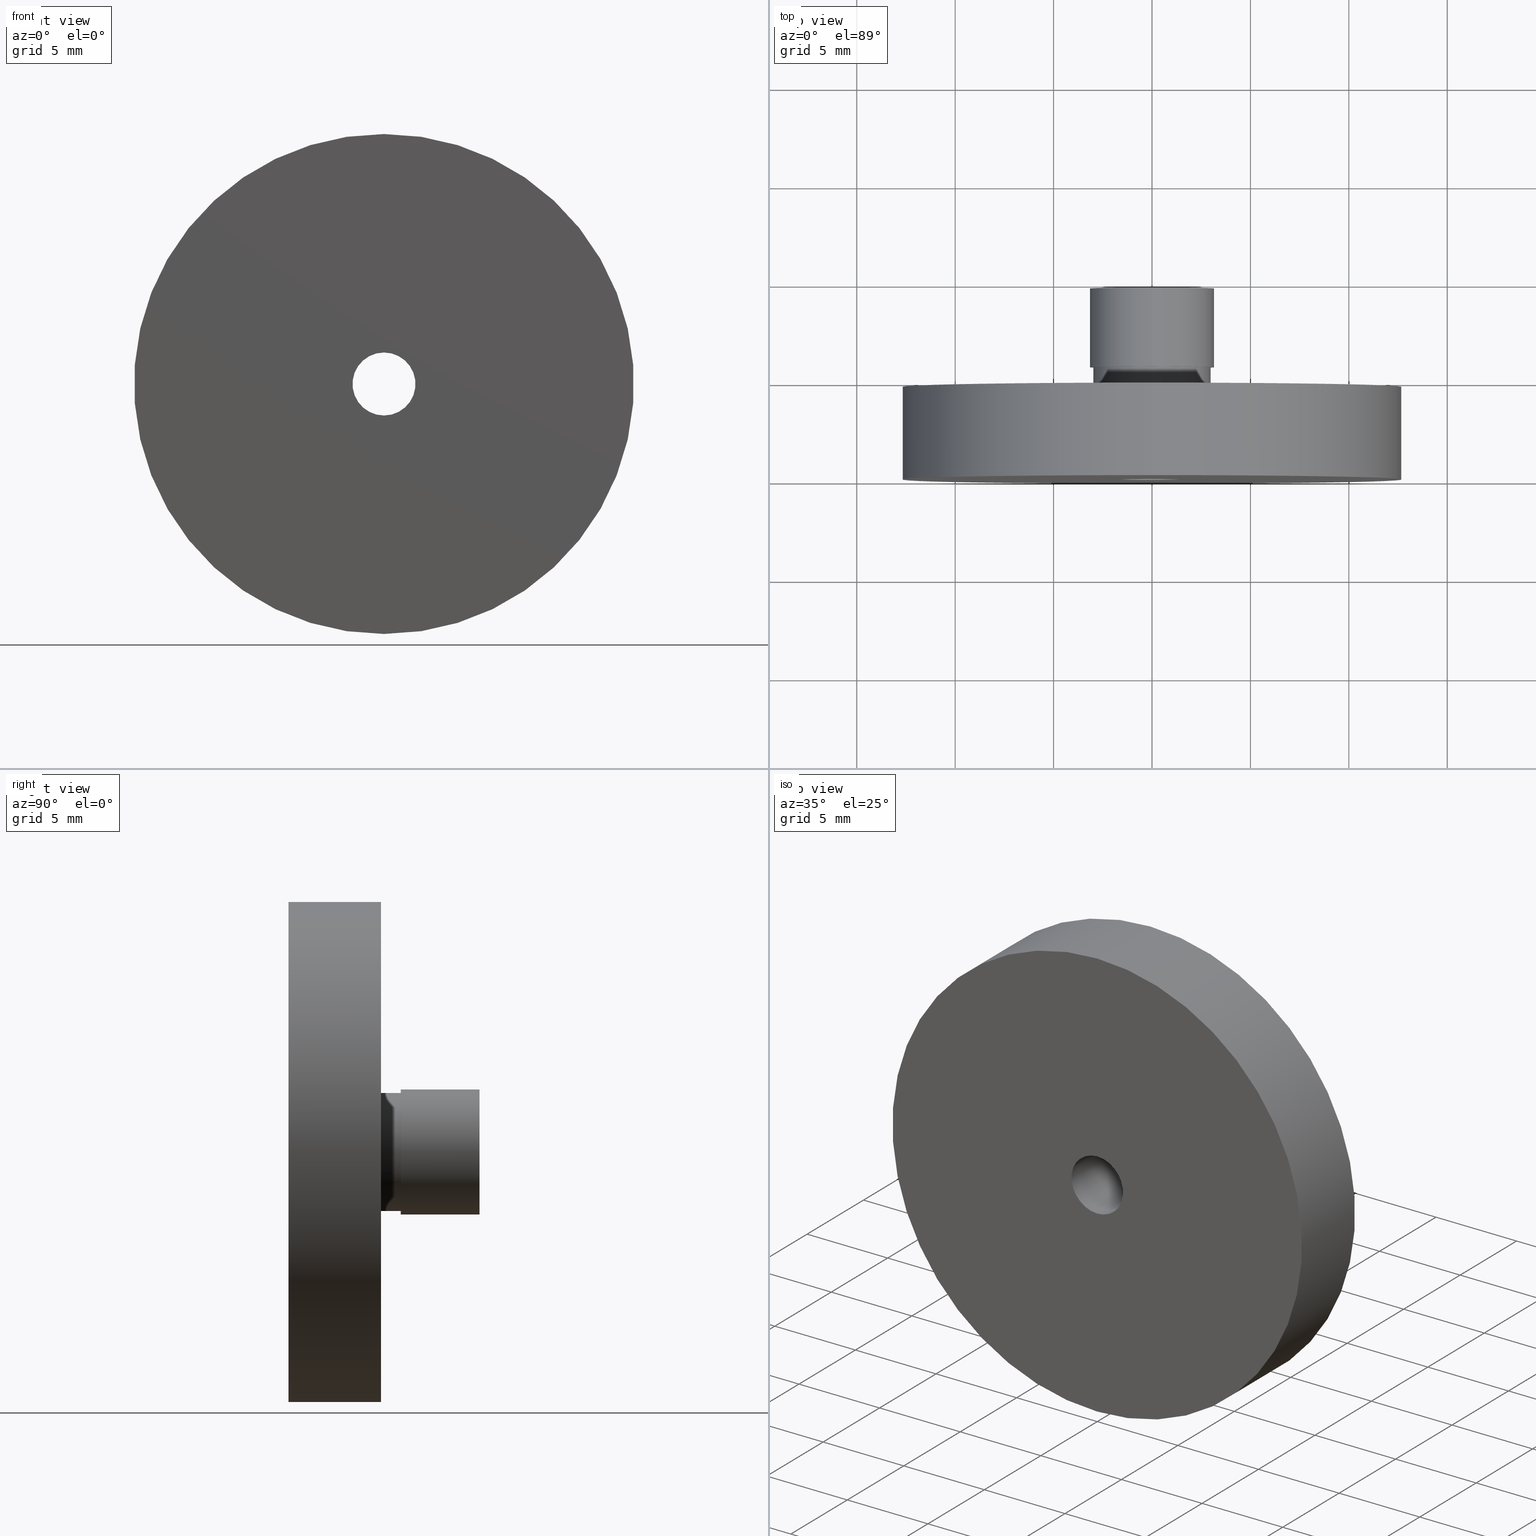
[diagram: canonical four-view strip — front | top / right | iso, engineering-drawing reading convention]
A machine part, canonical four-view strip (front | top / right | iso — engineering-drawing reading convention). The complete STEP part file that produces these views, byte-faithful:
ISO-10303-21;
HEADER;
FILE_DESCRIPTION (( 'STEP AP203' ),
    '1' );
FILE_NAME ('04ADA-SMA.STEP',
    '2016-03-02T05:48:13',
    ( '' ),
    ( '' ),
    'SwSTEP 2.0',
    'SolidWorks 2016',
    '' );
FILE_SCHEMA (( 'CONFIG_CONTROL_DESIGN' ));
ENDSEC;

DATA;
#1 = CARTESIAN_POINT ( 'NONE',  ( 3.000000000000004900, 5.699999999999999300, 0.0000000000000000000 ) ) ;
#2 = VERTEX_POINT ( 'NONE', #29 ) ;
#3 = VERTEX_POINT ( 'NONE', #376 ) ;
#4 = DIRECTION ( 'NONE',  ( -0.0000000000000000000, 1.000000000000000000, -0.0000000000000000000 ) ) ;
#5 = CARTESIAN_POINT ( 'NONE',  ( 0.0000000000000000000, 4.700000000000002800, 0.0000000000000000000 ) ) ;
#6 = PLANE ( 'NONE',  #341 ) ;
#7 = CIRCLE ( 'NONE', #198, 3.000000000000004900 ) ;
#8 = MECHANICAL_CONTEXT ( 'NONE', #140, 'mechanical' ) ;
#9 = VERTEX_POINT ( 'NONE', #59 ) ;
#10 = CARTESIAN_POINT ( 'NONE',  ( 0.0000000000000000000, 5.699999999999996600, 0.0000000000000000000 ) ) ;
#11 = DIRECTION ( 'NONE',  ( 0.0000000000000000000, -1.000000000000000000, 0.0000000000000000000 ) ) ;
#12 = DATE_AND_TIME ( #313, #386 ) ;
#13 = ORIENTED_EDGE ( 'NONE', *, *, #191, .F. ) ;
#14 = ORIENTED_EDGE ( 'NONE', *, *, #263, .F. ) ;
#15 = SECURITY_CLASSIFICATION ( '', '', #358 ) ;
#16 = DIRECTION ( 'NONE',  ( 0.0000000000000000000, 0.0000000000000000000, 1.000000000000000000 ) ) ;
#17 = CIRCLE ( 'NONE', #132, 12.70000000000000500 ) ;
#18 = DIRECTION ( 'NONE',  ( 0.0000000000000000000, -1.000000000000000000, 0.0000000000000000000 ) ) ;
#19 = DATE_AND_TIME ( #118, #399 ) ;
#20 = ORIENTED_EDGE ( 'NONE', *, *, #60, .F. ) ;
#21 = ORIENTED_EDGE ( 'NONE', *, *, #310, .F. ) ;
#22 = AXIS2_PLACEMENT_3D ( 'NONE', #42, #276, #272 ) ;
#23 = ADVANCED_BREP_SHAPE_REPRESENTATION ( '04ADA-SMA', ( #324, #300 ), #195 ) ;
#24 = ADVANCED_FACE ( 'NONE', ( #124, #162 ), #347, .F. ) ;
#25 = CIRCLE ( 'NONE', #365, 1.600000000000000100 ) ;
#26 = ORIENTED_EDGE ( 'NONE', *, *, #281, .F. ) ;
#27 = PERSON_AND_ORGANIZATION ( #117, #213 ) ;
#28 = VERTEX_POINT ( 'NONE', #58 ) ;
#29 = CARTESIAN_POINT ( 'NONE',  ( 0.0000000000000000000, 0.0000000000000000000, -1.600000000000000100 ) ) ;
#30 = EDGE_LOOP ( 'NONE', ( #164, #26 ) ) ;
#31 = AXIS2_PLACEMENT_3D ( 'NONE', #364, #177, #395 ) ;
#32 = CARTESIAN_POINT ( 'NONE',  ( 0.0000000000000000000, 41.06170623995065900, 0.0000000000000000000 ) ) ;
#33 = CIRCLE ( 'NONE', #247, 3.000000000000004400 ) ;
#34 = CC_DESIGN_SECURITY_CLASSIFICATION ( #15, ( #230 ) ) ;
#35 = DIRECTION ( 'NONE',  ( -0.0000000000000000000, 1.000000000000000000, -0.0000000000000000000 ) ) ;
#36 = ORIENTED_EDGE ( 'NONE', *, *, #234, .F. ) ;
#37 = PLANE ( 'NONE',  #379 ) ;
#38 = DIRECTION ( 'NONE',  ( 0.0000000000000000000, -1.000000000000000000, 0.0000000000000000000 ) ) ;
#39 = DATE_TIME_ROLE ( 'classification_date' ) ;
#40 = CARTESIAN_POINT ( 'NONE',  ( 0.0000000000000000000, 41.06170623995065900, 0.0000000000000000000 ) ) ;
#41 = CYLINDRICAL_SURFACE ( 'NONE', #408, 1.600000000000000100 ) ;
#42 = CARTESIAN_POINT ( 'NONE',  ( 0.0000000000000000000, 4.699999999999995700, 0.0000000000000000000 ) ) ;
#43 = CIRCLE ( 'NONE', #53, 1.600000000000000100 ) ;
#44 = DIRECTION ( 'NONE',  ( -0.0000000000000000000, -1.000000000000000000, -0.0000000000000000000 ) ) ;
#45 = FACE_OUTER_BOUND ( 'NONE', #145, .T. ) ;
#46 = VERTEX_POINT ( 'NONE', #322 ) ;
#47 = DIRECTION ( 'NONE',  ( 0.0000000000000000000, 0.0000000000000000000, 1.000000000000000000 ) ) ;
#48 = DIRECTION ( 'NONE',  ( 0.0000000000000000000, 0.0000000000000000000, 1.000000000000000000 ) ) ;
#49 = ORIENTED_EDGE ( 'NONE', *, *, #153, .F. ) ;
#50 = AXIS2_PLACEMENT_3D ( 'NONE', #167, #4, #269 ) ;
#51 = APPROVAL_PERSON_ORGANIZATION ( #27, #212, #232 ) ;
#52 = ADVANCED_FACE ( 'NONE', ( #129 ), #41, .F. ) ;
#53 = AXIS2_PLACEMENT_3D ( 'NONE', #311, #172, #239 ) ;
#54 = LINE ( 'NONE', #134, #88 ) ;
#55 = ORIENTED_EDGE ( 'NONE', *, *, #256, .F. ) ;
#56 = CARTESIAN_POINT ( 'NONE',  ( 0.0000000000000000000, 4.699999999999995700, 0.0000000000000000000 ) ) ;
#57 = LINE ( 'NONE', #353, #209 ) ;
#58 = CARTESIAN_POINT ( 'NONE',  ( 1.959434878635765200E-016, 0.0000000000000000000, 1.600000000000000100 ) ) ;
#59 = CARTESIAN_POINT ( 'NONE',  ( 1.959434878635765200E-016, 9.700000000000001100, 1.600000000000000100 ) ) ;
#60 = EDGE_CURVE ( 'NONE', #280, #267, #291, .T. ) ;
#61 = DIRECTION ( 'NONE',  ( 0.0000000000000000000, 0.0000000000000000000, 1.000000000000000000 ) ) ;
#62 = FACE_OUTER_BOUND ( 'NONE', #261, .T. ) ;
#63 = EDGE_CURVE ( 'NONE', #215, #105, #323, .T. ) ;
#64 = DIRECTION ( 'NONE',  ( 0.0000000000000000000, 0.0000000000000000000, -1.000000000000000000 ) ) ;
#65 = EDGE_LOOP ( 'NONE', ( #337, #287, #307, #292 ) ) ;
#66 = AXIS2_PLACEMENT_3D ( 'NONE', #10, #268, #356 ) ;
#67 = CARTESIAN_POINT ( 'NONE',  ( 0.0000000000000000000, 0.0000000000000000000, 0.0000000000000000000 ) ) ;
#68 = CARTESIAN_POINT ( 'NONE',  ( 0.0000000000000000000, 5.699999999999996600, 0.0000000000000000000 ) ) ;
#69 = CYLINDRICAL_SURFACE ( 'NONE', #50, 3.000000000000004400 ) ;
#70 = DIRECTION ( 'NONE',  ( 0.0000000000000000000, 0.0000000000000000000, 1.000000000000000000 ) ) ;
#71 = EDGE_CURVE ( 'NONE', #319, #105, #57, .T. ) ;
#72 = DIRECTION ( 'NONE',  ( 0.0000000000000000000, -0.0000000000000000000, -1.000000000000000000 ) ) ;
#73 = APPROVAL_ROLE ( '' ) ;
#74 = DIRECTION ( 'NONE',  ( 0.0000000000000000000, 0.0000000000000000000, 1.000000000000000000 ) ) ;
#75 = DATE_TIME_ROLE ( 'creation_date' ) ;
#76 = COORDINATED_UNIVERSAL_TIME_OFFSET ( 8, 0, .AHEAD. ) ;
#77 = CC_DESIGN_PERSON_AND_ORGANIZATION_ASSIGNMENT ( #152, #328, ( #407 ) ) ;
#78 = DIRECTION ( 'NONE',  ( -0.0000000000000000000, -1.000000000000000000, -0.0000000000000000000 ) ) ;
#79 = VERTEX_POINT ( 'NONE', #229 ) ;
#80 = ORIENTED_EDGE ( 'NONE', *, *, #374, .T. ) ;
#81 = AXIS2_PLACEMENT_3D ( 'NONE', #309, #219, #86 ) ;
#82 = DIRECTION ( 'NONE',  ( -0.0000000000000000000, 1.000000000000000000, -0.0000000000000000000 ) ) ;
#83 = CIRCLE ( 'NONE', #31, 3.175000000000004300 ) ;
#84 = ORIENTED_EDGE ( 'NONE', *, *, #297, .T. ) ;
#85 = ADVANCED_FACE ( 'NONE', ( #348 ), #97, .T. ) ;
#86 = DIRECTION ( 'NONE',  ( 0.0000000000000000000, 0.0000000000000000000, -1.000000000000000000 ) ) ;
#87 = SHAPE_DEFINITION_REPRESENTATION ( #278, #23 ) ;
#88 = VECTOR ( 'NONE', #163, 1000.000000000000000 ) ;
#89 = ORIENTED_EDGE ( 'NONE', *, *, #90, .F. ) ;
#90 = EDGE_CURVE ( 'NONE', #267, #193, #380, .T. ) ;
#91 = AXIS2_PLACEMENT_3D ( 'NONE', #68, #231, #108 ) ;
#92 = DIRECTION ( 'NONE',  ( -0.0000000000000000000, 1.000000000000000000, -0.0000000000000000000 ) ) ;
#93 = FACE_OUTER_BOUND ( 'NONE', #409, .T. ) ;
#94 = ORIENTED_EDGE ( 'NONE', *, *, #182, .F. ) ;
#95 = EDGE_CURVE ( 'NONE', #362, #340, #371, .T. ) ;
#96 = APPROVAL_DATE_TIME ( #184, #285 ) ;
#97 = CYLINDRICAL_SURFACE ( 'NONE', #98, 3.000000000000004400 ) ;
#98 = AXIS2_PLACEMENT_3D ( 'NONE', #378, #104, #137 ) ;
#99 = ORIENTED_EDGE ( 'NONE', *, *, #114, .F. ) ;
#100 = DIRECTION ( 'NONE',  ( 0.0000000000000000000, 0.0000000000000000000, 1.000000000000000000 ) ) ;
#101 = CARTESIAN_POINT ( 'NONE',  ( 1.555301434917139000E-015, 4.700000000000002800, -12.70000000000000500 ) ) ;
#102 = CIRCLE ( 'NONE', #81, 1.600000000000000100 ) ;
#103 = PERSON_AND_ORGANIZATION_ROLE ( 'design_owner' ) ;
#104 = DIRECTION ( 'NONE',  ( -0.0000000000000000000, 1.000000000000000000, -0.0000000000000000000 ) ) ;
#105 = VERTEX_POINT ( 'NONE', #101 ) ;
#106 = DIRECTION ( 'NONE',  ( 0.0000000000000000000, 0.0000000000000000000, 1.000000000000000000 ) ) ;
#107 = DIRECTION ( 'NONE',  ( -0.0000000000000000000, 1.000000000000000000, 0.0000000000000000000 ) ) ;
#108 = DIRECTION ( 'NONE',  ( 0.0000000000000000000, 0.0000000000000000000, 1.000000000000000000 ) ) ;
#109 = APPROVAL_PERSON_ORGANIZATION ( #270, #320, #271 ) ;
#110 = DIRECTION ( 'NONE',  ( 0.0000000000000000000, 0.0000000000000000000, 1.000000000000000000 ) ) ;
#111 = CARTESIAN_POINT ( 'NONE',  ( 0.0000000000000000000, 5.699999999999996600, 3.175000000000004300 ) ) ;
#112 = ORIENTED_EDGE ( 'NONE', *, *, #90, .T. ) ;
#113 = EDGE_LOOP ( 'NONE', ( #227, #405, #49, #372 ) ) ;
#114 = EDGE_CURVE ( 'NONE', #319, #284, #244, .T. ) ;
#115 = CARTESIAN_POINT ( 'NONE',  ( 0.0000000000000000000, 41.06170623995065900, 0.0000000000000000000 ) ) ;
#116 = CARTESIAN_POINT ( 'NONE',  ( 0.0000000000000000000, 9.700000000000001100, 0.0000000000000000000 ) ) ;
#117 = PERSON ( 'UNSPECIFIED', 'UNSPECIFIED', 'UNSPECIFIED', ('UNSPECIFIED'), ('UNSPECIFIED'), ('UNSPECIFIED') ) ;
#118 = CALENDAR_DATE ( 2016, 2, 3 ) ;
#119 = CARTESIAN_POINT ( 'NONE',  ( 0.0000000000000000000, 0.0000000000000000000, 12.70000000000000500 ) ) ;
#120 = AXIS2_PLACEMENT_3D ( 'NONE', #295, #35, #387 ) ;
#121 = LINE ( 'NONE', #240, #168 ) ;
#122 = ORIENTED_EDGE ( 'NONE', *, *, #71, .F. ) ;
#123 = EDGE_LOOP ( 'NONE', ( #222, #363, #397, #273 ) ) ;
#124 = FACE_OUTER_BOUND ( 'NONE', #252, .T. ) ;
#125 = CC_DESIGN_DATE_AND_TIME_ASSIGNMENT ( #196, #75, ( #407 ) ) ;
#126 = FACE_BOUND ( 'NONE', #30, .T. ) ;
#127 = ORIENTED_EDGE ( 'NONE', *, *, #338, .T. ) ;
#128 = FACE_BOUND ( 'NONE', #368, .T. ) ;
#129 = FACE_OUTER_BOUND ( 'NONE', #274, .T. ) ;
#130 = LOCAL_TIME ( 13, 48, 13.00000000000000000, #233 ) ;
#131 = FACE_OUTER_BOUND ( 'NONE', #186, .T. ) ;
#132 = AXIS2_PLACEMENT_3D ( 'NONE', #390, #398, #47 ) ;
#133 = ORIENTED_EDGE ( 'NONE', *, *, #383, .T. ) ;
#134 = CARTESIAN_POINT ( 'NONE',  ( 0.0000000000000000000, 41.06170623995065900, 3.175000000000004300 ) ) ;
#135 = CARTESIAN_POINT ( 'NONE',  ( 0.0000000000000000000, 9.700000000000001100, 3.175000000000004300 ) ) ;
#136 =( NAMED_UNIT ( * ) SI_UNIT ( $, .STERADIAN. ) SOLID_ANGLE_UNIT ( ) );
#137 = DIRECTION ( 'NONE',  ( 0.0000000000000000000, 0.0000000000000000000, 1.000000000000000000 ) ) ;
#138 = APPLICATION_CONTEXT ( 'configuration controlled 3d designs of mechanical parts and assemblies' ) ;
#139 = LINE ( 'NONE', #141, #401 ) ;
#140 = APPLICATION_CONTEXT ( 'configuration controlled 3d designs of mechanical parts and assemblies' ) ;
#141 = CARTESIAN_POINT ( 'NONE',  ( 0.0000000000000000000, 41.06170623995065900, 12.70000000000000500 ) ) ;
#142 = CARTESIAN_POINT ( 'NONE',  ( 1.555301434917139000E-015, 0.0000000000000000000, -12.70000000000000500 ) ) ;
#143 = AXIS2_PLACEMENT_3D ( 'NONE', #204, #235, #381 ) ;
#144 = DATE_AND_TIME ( #241, #192 ) ;
#145 = EDGE_LOOP ( 'NONE', ( #133, #333, #327, #21 ) ) ;
#146 = ORIENTED_EDGE ( 'NONE', *, *, #71, .T. ) ;
#147 = CC_DESIGN_PERSON_AND_ORGANIZATION_ASSIGNMENT ( #290, #361, ( #230 ) ) ;
#148 = CARTESIAN_POINT ( 'NONE',  ( 3.673940397442064800E-016, 41.06170623995065900, -3.000000000000004400 ) ) ;
#149 = CALENDAR_DATE ( 2016, 2, 3 ) ;
#150 = CIRCLE ( 'NONE', #66, 3.175000000000004300 ) ;
#151 = ADVANCED_FACE ( 'NONE', ( #126, #131 ), #6, .F. ) ;
#152 = PERSON_AND_ORGANIZATION ( #117, #213 ) ;
#153 = EDGE_CURVE ( 'NONE', #193, #267, #185, .T. ) ;
#154 = CYLINDRICAL_SURFACE ( 'NONE', #304, 3.175000000000004300 ) ;
#155 = ORIENTED_EDGE ( 'NONE', *, *, #256, .T. ) ;
#156 = ADVANCED_FACE ( 'NONE', ( #62 ), #154, .T. ) ;
#157 = AXIS2_PLACEMENT_3D ( 'NONE', #200, #170, #100 ) ;
#158 = DIRECTION ( 'NONE',  ( -0.0000000000000000000, -1.000000000000000000, -0.0000000000000000000 ) ) ;
#159 = EDGE_LOOP ( 'NONE', ( #339, #169 ) ) ;
#160 = CARTESIAN_POINT ( 'NONE',  ( 3.888253587292851500E-016, 41.06170623995065900, -3.175000000000004300 ) ) ;
#161 = AXIS2_PLACEMENT_3D ( 'NONE', #326, #38, #64 ) ;
#162 = FACE_BOUND ( 'NONE', #325, .T. ) ;
#163 = DIRECTION ( 'NONE',  ( -0.0000000000000000000, 1.000000000000000000, -0.0000000000000000000 ) ) ;
#164 = ORIENTED_EDGE ( 'NONE', *, *, #383, .F. ) ;
#165 = CC_DESIGN_APPROVAL ( #212, ( #230 ) ) ;
#166 = EDGE_CURVE ( 'NONE', #228, #193, #54, .T. ) ;
#167 = CARTESIAN_POINT ( 'NONE',  ( 0.0000000000000000000, 41.06170623995065900, 0.0000000000000000000 ) ) ;
#168 = VECTOR ( 'NONE', #174, 1000.000000000000000 ) ;
#169 = ORIENTED_EDGE ( 'NONE', *, *, #392, .T. ) ;
#170 = DIRECTION ( 'NONE',  ( -0.0000000000000000000, 1.000000000000000000, -0.0000000000000000000 ) ) ;
#171 = CARTESIAN_POINT ( 'NONE',  ( 0.0000000000000000000, 0.0000000000000000000, 0.0000000000000000000 ) ) ;
#172 = DIRECTION ( 'NONE',  ( 0.0000000000000000000, -1.000000000000000000, 0.0000000000000000000 ) ) ;
#173 = PERSON_AND_ORGANIZATION ( #117, #213 ) ;
#174 = DIRECTION ( 'NONE',  ( -0.0000000000000000000, -1.000000000000000000, -0.0000000000000000000 ) ) ;
#175 = ORIENTED_EDGE ( 'NONE', *, *, #63, .F. ) ;
#176 = EDGE_LOOP ( 'NONE', ( #201, #99 ) ) ;
#177 = DIRECTION ( 'NONE',  ( -0.0000000000000000000, 1.000000000000000000, -0.0000000000000000000 ) ) ;
#178 = AXIS2_PLACEMENT_3D ( 'NONE', #116, #44, #334 ) ;
#179 = CARTESIAN_POINT ( 'NONE',  ( 0.0000000000000000000, 0.0000000000000000000, 0.0000000000000000000 ) ) ;
#180 = CYLINDRICAL_SURFACE ( 'NONE', #223, 3.175000000000004300 ) ;
#181 = DIRECTION ( 'NONE',  ( 0.0000000000000000000, 0.0000000000000000000, -1.000000000000000000 ) ) ;
#182 = EDGE_CURVE ( 'NONE', #228, #280, #150, .T. ) ;
#183 = DIRECTION ( 'NONE',  ( 0.0000000000000000000, 0.0000000000000000000, 1.000000000000000000 ) ) ;
#184 = DATE_AND_TIME ( #149, #130 ) ;
#185 = CIRCLE ( 'NONE', #143, 3.175000000000004300 ) ;
#186 = EDGE_LOOP ( 'NONE', ( #306, #382 ) ) ;
#187 = ADVANCED_FACE ( 'NONE', ( #45 ), #69, .T. ) ;
#188 = CIRCLE ( 'NONE', #22, 3.000000000000004400 ) ;
#189 = ORIENTED_EDGE ( 'NONE', *, *, #166, .T. ) ;
#190 = DIRECTION ( 'NONE',  ( -0.0000000000000000000, 1.000000000000000000, -0.0000000000000000000 ) ) ;
#191 = EDGE_CURVE ( 'NONE', #28, #2, #236, .T. ) ;
#192 = LOCAL_TIME ( 13, 48, 13.00000000000000000, #359 ) ;
#193 = VERTEX_POINT ( 'NONE', #135 ) ;
#194 = EDGE_LOOP ( 'NONE', ( #122, #316, #155, #14 ) ) ;
#195 =( GEOMETRIC_REPRESENTATION_CONTEXT ( 3 ) GLOBAL_UNCERTAINTY_ASSIGNED_CONTEXT ( ( #254 ) ) GLOBAL_UNIT_ASSIGNED_CONTEXT ( ( #203, #206, #136 ) ) REPRESENTATION_CONTEXT ( 'NONE', 'WORKASPACE' ) );
#196 = DATE_AND_TIME ( #282, #286 ) ;
#197 = DIRECTION ( 'NONE',  ( 0.0000000000000000000, -1.000000000000000000, 0.0000000000000000000 ) ) ;
#198 = AXIS2_PLACEMENT_3D ( 'NONE', #249, #402, #183 ) ;
#199 = DESIGN_CONTEXT ( 'detailed design', #138, 'design' ) ;
#200 = CARTESIAN_POINT ( 'NONE',  ( 0.0000000000000000000, 0.0000000000000000000, 0.0000000000000000000 ) ) ;
#201 = ORIENTED_EDGE ( 'NONE', *, *, #370, .F. ) ;
#202 = PLANE ( 'NONE',  #288 ) ;
#203 =( LENGTH_UNIT ( ) NAMED_UNIT ( * ) SI_UNIT ( .MILLI., .METRE. ) );
#204 = CARTESIAN_POINT ( 'NONE',  ( 0.0000000000000000000, 9.700000000000001100, 0.0000000000000000000 ) ) ;
#205 = PERSON_AND_ORGANIZATION ( #117, #213 ) ;
#206 =( NAMED_UNIT ( * ) PLANE_ANGLE_UNIT ( ) SI_UNIT ( $, .RADIAN. ) );
#207 = AXIS2_PLACEMENT_3D ( 'NONE', #1, #260, #61 ) ;
#208 = CARTESIAN_POINT ( 'NONE',  ( 0.0000000000000000000, 41.06170623995065900, 0.0000000000000000000 ) ) ;
#209 = VECTOR ( 'NONE', #352, 1000.000000000000000 ) ;
#210 = APPROVAL_STATUS ( 'not_yet_approved' ) ;
#211 = CARTESIAN_POINT ( 'NONE',  ( 0.0000000000000000000, 9.700000000000001100, -1.600000000000000100 ) ) ;
#212 = APPROVAL ( #391, 'UNSPECIFIED' ) ;
#213 = ORGANIZATION ( 'UNSPECIFIED', 'UNSPECIFIED', '' ) ;
#214 = CIRCLE ( 'NONE', #264, 12.70000000000000500 ) ;
#215 = VERTEX_POINT ( 'NONE', #385 ) ;
#216 = ADVANCED_FACE ( 'NONE', ( #396, #315 ), #37, .F. ) ;
#217 = APPROVAL_DATE_TIME ( #144, #212 ) ;
#218 = VECTOR ( 'NONE', #190, 1000.000000000000000 ) ;
#219 = DIRECTION ( 'NONE',  ( 0.0000000000000000000, -1.000000000000000000, 0.0000000000000000000 ) ) ;
#220 = CC_DESIGN_APPROVAL ( #320, ( #407 ) ) ;
#221 = ADVANCED_FACE ( 'NONE', ( #332 ), #294, .T. ) ;
#222 = ORIENTED_EDGE ( 'NONE', *, *, #250, .F. ) ;
#223 = AXIS2_PLACEMENT_3D ( 'NONE', #115, #335, #331 ) ;
#224 = VECTOR ( 'NONE', #299, 1000.000000000000000 ) ;
#225 = AXIS2_PLACEMENT_3D ( 'NONE', #5, #265, #106 ) ;
#226 = CC_DESIGN_APPROVAL ( #285, ( #15 ) ) ;
#227 = ORIENTED_EDGE ( 'NONE', *, *, #182, .T. ) ;
#228 = VERTEX_POINT ( 'NONE', #111 ) ;
#229 = CARTESIAN_POINT ( 'NONE',  ( 0.0000000000000000000, 4.699999999999995700, 3.000000000000004400 ) ) ;
#230 = PRODUCT_DEFINITION_FORMATION_WITH_SPECIFIED_SOURCE ( 'ANY', '', #277, .NOT_KNOWN. ) ;
#231 = DIRECTION ( 'NONE',  ( -0.0000000000000000000, 1.000000000000000000, -0.0000000000000000000 ) ) ;
#232 = APPROVAL_ROLE ( '' ) ;
#233 = COORDINATED_UNIVERSAL_TIME_OFFSET ( 8, 0, .AHEAD. ) ;
#234 = EDGE_CURVE ( 'NONE', #46, #2, #375, .T. ) ;
#235 = DIRECTION ( 'NONE',  ( -0.0000000000000000000, 1.000000000000000000, -0.0000000000000000000 ) ) ;
#236 = CIRCLE ( 'NONE', #161, 1.600000000000000100 ) ;
#237 = PERSON_AND_ORGANIZATION_ROLE ( 'design_supplier' ) ;
#238 = DIRECTION ( 'NONE',  ( 0.0000000000000000000, -0.0000000000000000000, -1.000000000000000000 ) ) ;
#239 = DIRECTION ( 'NONE',  ( 0.0000000000000000000, 0.0000000000000000000, -1.000000000000000000 ) ) ;
#240 = CARTESIAN_POINT ( 'NONE',  ( 1.959434878635765200E-016, 9.700000000000001100, 1.600000000000000100 ) ) ;
#241 = CALENDAR_DATE ( 2016, 2, 3 ) ;
#242 = CC_DESIGN_PERSON_AND_ORGANIZATION_ASSIGNMENT ( #394, #237, ( #230 ) ) ;
#243 = CARTESIAN_POINT ( 'NONE',  ( 3.888253587292851500E-016, 9.700000000000001100, -3.175000000000004300 ) ) ;
#244 = CIRCLE ( 'NONE', #157, 12.70000000000000500 ) ;
#245 = ORIENTED_EDGE ( 'NONE', *, *, #370, .T. ) ;
#246 = CARTESIAN_POINT ( 'NONE',  ( 3.673940397442065800E-016, 5.699999999999996600, -3.000000000000005300 ) ) ;
#247 = AXIS2_PLACEMENT_3D ( 'NONE', #56, #92, #312 ) ;
#248 = ORIENTED_EDGE ( 'NONE', *, *, #95, .T. ) ;
#249 = CARTESIAN_POINT ( 'NONE',  ( 0.0000000000000000000, 5.699999999999996600, 0.0000000000000000000 ) ) ;
#250 = EDGE_CURVE ( 'NONE', #3, #362, #308, .T. ) ;
#251 = DIRECTION ( 'NONE',  ( -0.0000000000000000000, 1.000000000000000000, -0.0000000000000000000 ) ) ;
#252 = EDGE_LOOP ( 'NONE', ( #94, #355 ) ) ;
#253 = ORIENTED_EDGE ( 'NONE', *, *, #392, .F. ) ;
#254 = UNCERTAINTY_MEASURE_WITH_UNIT (LENGTH_MEASURE( 1.000000000000000100E-005 ), #203, 'distance_accuracy_value', 'NONE');
#255 = CYLINDRICAL_SURFACE ( 'NONE', #283, 12.70000000000000500 ) ;
#256 = EDGE_CURVE ( 'NONE', #284, #215, #139, .T. ) ;
#257 = CLOSED_SHELL ( 'NONE', ( #52, #314, #187, #317, #404, #221, #151, #85, #24, #156, #216, #342 ) ) ;
#258 = AXIS2_PLACEMENT_3D ( 'NONE', #40, #82, #74 ) ;
#259 = FACE_OUTER_BOUND ( 'NONE', #176, .T. ) ;
#260 = DIRECTION ( 'NONE',  ( -0.0000000000000000000, 1.000000000000000000, 0.0000000000000000000 ) ) ;
#261 = EDGE_LOOP ( 'NONE', ( #20, #127, #189, #89 ) ) ;
#262 = CC_DESIGN_PERSON_AND_ORGANIZATION_ASSIGNMENT ( #205, #357, ( #15 ) ) ;
#263 = EDGE_CURVE ( 'NONE', #105, #215, #17, .T. ) ;
#264 = AXIS2_PLACEMENT_3D ( 'NONE', #179, #251, #48 ) ;
#265 = DIRECTION ( 'NONE',  ( -0.0000000000000000000, 1.000000000000000000, -0.0000000000000000000 ) ) ;
#266 = VECTOR ( 'NONE', #329, 1000.000000000000000 ) ;
#267 = VERTEX_POINT ( 'NONE', #243 ) ;
#268 = DIRECTION ( 'NONE',  ( -0.0000000000000000000, 1.000000000000000000, -0.0000000000000000000 ) ) ;
#269 = DIRECTION ( 'NONE',  ( 0.0000000000000000000, 0.0000000000000000000, 1.000000000000000000 ) ) ;
#270 = PERSON_AND_ORGANIZATION ( #117, #213 ) ;
#271 = APPROVAL_ROLE ( '' ) ;
#272 = DIRECTION ( 'NONE',  ( 0.0000000000000000000, 0.0000000000000000000, 1.000000000000000000 ) ) ;
#273 = ORIENTED_EDGE ( 'NONE', *, *, #95, .F. ) ;
#274 = EDGE_LOOP ( 'NONE', ( #253, #84, #289, #36 ) ) ;
#275 = CARTESIAN_POINT ( 'NONE',  ( 0.0000000000000000000, 41.06170623995065900, 3.000000000000004400 ) ) ;
#276 = DIRECTION ( 'NONE',  ( -0.0000000000000000000, 1.000000000000000000, -0.0000000000000000000 ) ) ;
#277 = PRODUCT ( '04ADA-SMA', '04ADA-SMA', '', ( #8 ) ) ;
#278 = PRODUCT_DEFINITION_SHAPE ( 'NONE', 'NONE',  #407 ) ;
#279 = CYLINDRICAL_SURFACE ( 'NONE', #178, 1.600000000000000100 ) ;
#280 = VERTEX_POINT ( 'NONE', #302 ) ;
#281 = EDGE_CURVE ( 'NONE', #3, #79, #188, .T. ) ;
#282 = CALENDAR_DATE ( 2016, 2, 3 ) ;
#283 = AXIS2_PLACEMENT_3D ( 'NONE', #208, #366, #16 ) ;
#284 = VERTEX_POINT ( 'NONE', #119 ) ;
#285 = APPROVAL ( #210, 'UNSPECIFIED' ) ;
#286 = LOCAL_TIME ( 13, 48, 13.00000000000000000, #321 ) ;
#287 = ORIENTED_EDGE ( 'NONE', *, *, #367, .F. ) ;
#288 = AXIS2_PLACEMENT_3D ( 'NONE', #67, #107, #70 ) ;
#289 = ORIENTED_EDGE ( 'NONE', *, *, #191, .T. ) ;
#290 = PERSON_AND_ORGANIZATION ( #117, #213 ) ;
#291 = LINE ( 'NONE', #160, #218 ) ;
#292 = ORIENTED_EDGE ( 'NONE', *, *, #343, .T. ) ;
#293 = CC_DESIGN_DATE_AND_TIME_ASSIGNMENT ( #19, #39, ( #15 ) ) ;
#294 = CYLINDRICAL_SURFACE ( 'NONE', #258, 12.70000000000000500 ) ;
#295 = CARTESIAN_POINT ( 'NONE',  ( 0.0000000000000000000, 9.700000000000001100, 0.0000000000000000000 ) ) ;
#296 = APPROVAL_STATUS ( 'not_yet_approved' ) ;
#297 = EDGE_CURVE ( 'NONE', #9, #28, #121, .T. ) ;
#298 = DIRECTION ( 'NONE',  ( 0.0000000000000000000, 0.0000000000000000000, 1.000000000000000000 ) ) ;
#299 = DIRECTION ( 'NONE',  ( -0.0000000000000000000, 1.000000000000000000, -0.0000000000000000000 ) ) ;
#300 = AXIS2_PLACEMENT_3D ( 'NONE', #171, #110, #389 ) ;
#301 = APPLICATION_PROTOCOL_DEFINITION ( 'international standard', 'config_control_design', 1994, #138 ) ;
#302 = CARTESIAN_POINT ( 'NONE',  ( 3.888253587292851500E-016, 5.699999999999996600, -3.175000000000004300 ) ) ;
#303 = COORDINATED_UNIVERSAL_TIME_OFFSET ( 8, 0, .AHEAD. ) ;
#304 = AXIS2_PLACEMENT_3D ( 'NONE', #32, #350, #298 ) ;
#305 = CARTESIAN_POINT ( 'NONE',  ( 0.0000000000000000000, 5.699999999999996600, 3.000000000000004900 ) ) ;
#306 = ORIENTED_EDGE ( 'NONE', *, *, #63, .T. ) ;
#307 = ORIENTED_EDGE ( 'NONE', *, *, #234, .T. ) ;
#308 = LINE ( 'NONE', #148, #224 ) ;
#309 = CARTESIAN_POINT ( 'NONE',  ( 0.0000000000000000000, 9.700000000000001100, 0.0000000000000000000 ) ) ;
#310 = EDGE_CURVE ( 'NONE', #79, #340, #345, .T. ) ;
#311 = CARTESIAN_POINT ( 'NONE',  ( 0.0000000000000000000, 9.700000000000001100, 0.0000000000000000000 ) ) ;
#312 = DIRECTION ( 'NONE',  ( 0.0000000000000000000, 0.0000000000000000000, 1.000000000000000000 ) ) ;
#313 = CALENDAR_DATE ( 2016, 2, 3 ) ;
#314 = ADVANCED_FACE ( 'NONE', ( #354 ), #180, .T. ) ;
#315 = FACE_OUTER_BOUND ( 'NONE', #369, .T. ) ;
#317 = ADVANCED_FACE ( 'NONE', ( #93 ), #255, .T. ) ;
#316 = ORIENTED_EDGE ( 'NONE', *, *, #114, .T. ) ;
#318 = PERSON_AND_ORGANIZATION ( #117, #213 ) ;
#319 = VERTEX_POINT ( 'NONE', #142 ) ;
#320 = APPROVAL ( #296, 'UNSPECIFIED' ) ;
#321 = COORDINATED_UNIVERSAL_TIME_OFFSET ( 8, 0, .AHEAD. ) ;
#322 = CARTESIAN_POINT ( 'NONE',  ( 0.0000000000000000000, 9.700000000000001100, -1.600000000000000100 ) ) ;
#323 = CIRCLE ( 'NONE', #225, 12.70000000000000500 ) ;
#324 = MANIFOLD_SOLID_BREP ( '����1', #257 ) ;
#325 = EDGE_LOOP ( 'NONE', ( #80, #248 ) ) ;
#326 = CARTESIAN_POINT ( 'NONE',  ( 0.0000000000000000000, 0.0000000000000000000, 0.0000000000000000000 ) ) ;
#327 = ORIENTED_EDGE ( 'NONE', *, *, #374, .F. ) ;
#328 = PERSON_AND_ORGANIZATION_ROLE ( 'creator' ) ;
#329 = DIRECTION ( 'NONE',  ( -0.0000000000000000000, 1.000000000000000000, -0.0000000000000000000 ) ) ;
#330 = APPLICATION_PROTOCOL_DEFINITION ( 'international standard', 'config_control_design', 1994, #140 ) ;
#331 = DIRECTION ( 'NONE',  ( 0.0000000000000000000, 0.0000000000000000000, 1.000000000000000000 ) ) ;
#332 = FACE_OUTER_BOUND ( 'NONE', #194, .T. ) ;
#333 = ORIENTED_EDGE ( 'NONE', *, *, #250, .T. ) ;
#334 = DIRECTION ( 'NONE',  ( 0.0000000000000000000, 0.0000000000000000000, -1.000000000000000000 ) ) ;
#335 = DIRECTION ( 'NONE',  ( -0.0000000000000000000, 1.000000000000000000, -0.0000000000000000000 ) ) ;
#336 = FACE_OUTER_BOUND ( 'NONE', #65, .T. ) ;
#337 = ORIENTED_EDGE ( 'NONE', *, *, #297, .F. ) ;
#338 = EDGE_CURVE ( 'NONE', #280, #228, #83, .T. ) ;
#339 = ORIENTED_EDGE ( 'NONE', *, *, #367, .T. ) ;
#340 = VERTEX_POINT ( 'NONE', #305 ) ;
#341 = AXIS2_PLACEMENT_3D ( 'NONE', #384, #197, #72 ) ;
#342 = ADVANCED_FACE ( 'NONE', ( #336 ), #279, .F. ) ;
#343 = EDGE_CURVE ( 'NONE', #2, #28, #25, .T. ) ;
#344 = CARTESIAN_POINT ( 'NONE',  ( 0.0000000000000000000, 9.700000000000001100, 0.0000000000000000000 ) ) ;
#345 = LINE ( 'NONE', #275, #266 ) ;
#346 = APPROVAL_PERSON_ORGANIZATION ( #318, #285, #73 ) ;
#347 = PLANE ( 'NONE',  #207 ) ;
#348 = FACE_OUTER_BOUND ( 'NONE', #123, .T. ) ;
#349 = ORIENTED_EDGE ( 'NONE', *, *, #343, .F. ) ;
#350 = DIRECTION ( 'NONE',  ( -0.0000000000000000000, 1.000000000000000000, -0.0000000000000000000 ) ) ;
#351 = PRODUCT_RELATED_PRODUCT_CATEGORY ( 'detail', '', ( #277 ) ) ;
#352 = DIRECTION ( 'NONE',  ( -0.0000000000000000000, 1.000000000000000000, -0.0000000000000000000 ) ) ;
#353 = CARTESIAN_POINT ( 'NONE',  ( 1.555301434917139000E-015, 41.06170623995065900, -12.70000000000000500 ) ) ;
#354 = FACE_OUTER_BOUND ( 'NONE', #113, .T. ) ;
#355 = ORIENTED_EDGE ( 'NONE', *, *, #338, .F. ) ;
#356 = DIRECTION ( 'NONE',  ( 0.0000000000000000000, 0.0000000000000000000, 1.000000000000000000 ) ) ;
#357 = PERSON_AND_ORGANIZATION_ROLE ( 'classification_officer' ) ;
#358 = SECURITY_CLASSIFICATION_LEVEL ( 'unclassified' ) ;
#359 = COORDINATED_UNIVERSAL_TIME_OFFSET ( 8, 0, .AHEAD. ) ;
#360 = DIRECTION ( 'NONE',  ( -0.0000000000000000000, 1.000000000000000000, -0.0000000000000000000 ) ) ;
#361 = PERSON_AND_ORGANIZATION_ROLE ( 'creator' ) ;
#362 = VERTEX_POINT ( 'NONE', #246 ) ;
#363 = ORIENTED_EDGE ( 'NONE', *, *, #281, .T. ) ;
#364 = CARTESIAN_POINT ( 'NONE',  ( 0.0000000000000000000, 5.699999999999996600, 0.0000000000000000000 ) ) ;
#365 = AXIS2_PLACEMENT_3D ( 'NONE', #400, #18, #181 ) ;
#366 = DIRECTION ( 'NONE',  ( -0.0000000000000000000, 1.000000000000000000, -0.0000000000000000000 ) ) ;
#367 = EDGE_CURVE ( 'NONE', #46, #9, #102, .T. ) ;
#368 = EDGE_LOOP ( 'NONE', ( #349, #13 ) ) ;
#369 = EDGE_LOOP ( 'NONE', ( #406, #112 ) ) ;
#370 = EDGE_CURVE ( 'NONE', #284, #319, #214, .T. ) ;
#371 = CIRCLE ( 'NONE', #91, 3.000000000000004900 ) ;
#372 = ORIENTED_EDGE ( 'NONE', *, *, #166, .F. ) ;
#373 = DIRECTION ( 'NONE',  ( 0.0000000000000000000, 0.0000000000000000000, -1.000000000000000000 ) ) ;
#374 = EDGE_CURVE ( 'NONE', #340, #362, #7, .T. ) ;
#375 = LINE ( 'NONE', #211, #388 ) ;
#376 = CARTESIAN_POINT ( 'NONE',  ( 3.673940397442064800E-016, 4.699999999999995700, -3.000000000000004400 ) ) ;
#377 = CC_DESIGN_PERSON_AND_ORGANIZATION_ASSIGNMENT ( #173, #103, ( #277 ) ) ;
#378 = CARTESIAN_POINT ( 'NONE',  ( 0.0000000000000000000, 41.06170623995065900, 0.0000000000000000000 ) ) ;
#379 = AXIS2_PLACEMENT_3D ( 'NONE', #393, #11, #238 ) ;
#380 = CIRCLE ( 'NONE', #120, 3.175000000000004300 ) ;
#381 = DIRECTION ( 'NONE',  ( 0.0000000000000000000, 0.0000000000000000000, 1.000000000000000000 ) ) ;
#382 = ORIENTED_EDGE ( 'NONE', *, *, #263, .T. ) ;
#383 = EDGE_CURVE ( 'NONE', #79, #3, #33, .T. ) ;
#384 = CARTESIAN_POINT ( 'NONE',  ( 3.175000000000004300, 4.699999999999999300, 0.0000000000000000000 ) ) ;
#385 = CARTESIAN_POINT ( 'NONE',  ( 0.0000000000000000000, 4.700000000000002800, 12.70000000000000500 ) ) ;
#386 = LOCAL_TIME ( 13, 48, 13.00000000000000000, #76 ) ;
#387 = DIRECTION ( 'NONE',  ( 0.0000000000000000000, 0.0000000000000000000, 1.000000000000000000 ) ) ;
#388 = VECTOR ( 'NONE', #78, 1000.000000000000000 ) ;
#389 = DIRECTION ( 'NONE',  ( 1.000000000000000000, 0.0000000000000000000, 0.0000000000000000000 ) ) ;
#390 = CARTESIAN_POINT ( 'NONE',  ( 0.0000000000000000000, 4.700000000000002800, 0.0000000000000000000 ) ) ;
#391 = APPROVAL_STATUS ( 'not_yet_approved' ) ;
#392 = EDGE_CURVE ( 'NONE', #9, #46, #43, .T. ) ;
#393 = CARTESIAN_POINT ( 'NONE',  ( 3.175000000000004300, 9.699999999999999300, 0.0000000000000000000 ) ) ;
#394 = PERSON_AND_ORGANIZATION ( #117, #213 ) ;
#395 = DIRECTION ( 'NONE',  ( 0.0000000000000000000, 0.0000000000000000000, 1.000000000000000000 ) ) ;
#396 = FACE_BOUND ( 'NONE', #159, .T. ) ;
#397 = ORIENTED_EDGE ( 'NONE', *, *, #310, .T. ) ;
#398 = DIRECTION ( 'NONE',  ( -0.0000000000000000000, 1.000000000000000000, -0.0000000000000000000 ) ) ;
#399 = LOCAL_TIME ( 13, 48, 13.00000000000000000, #303 ) ;
#400 = CARTESIAN_POINT ( 'NONE',  ( 0.0000000000000000000, 0.0000000000000000000, 0.0000000000000000000 ) ) ;
#401 = VECTOR ( 'NONE', #360, 1000.000000000000000 ) ;
#402 = DIRECTION ( 'NONE',  ( -0.0000000000000000000, 1.000000000000000000, -0.0000000000000000000 ) ) ;
#403 = APPROVAL_DATE_TIME ( #12, #320 ) ;
#404 = ADVANCED_FACE ( 'NONE', ( #128, #259 ), #202, .F. ) ;
#405 = ORIENTED_EDGE ( 'NONE', *, *, #60, .T. ) ;
#406 = ORIENTED_EDGE ( 'NONE', *, *, #153, .T. ) ;
#407 = PRODUCT_DEFINITION ( 'UNKNOWN', '', #230, #199 ) ;
#408 = AXIS2_PLACEMENT_3D ( 'NONE', #344, #158, #373 ) ;
#409 = EDGE_LOOP ( 'NONE', ( #245, #146, #175, #55 ) ) ;
ENDSEC;
END-ISO-10303-21;
